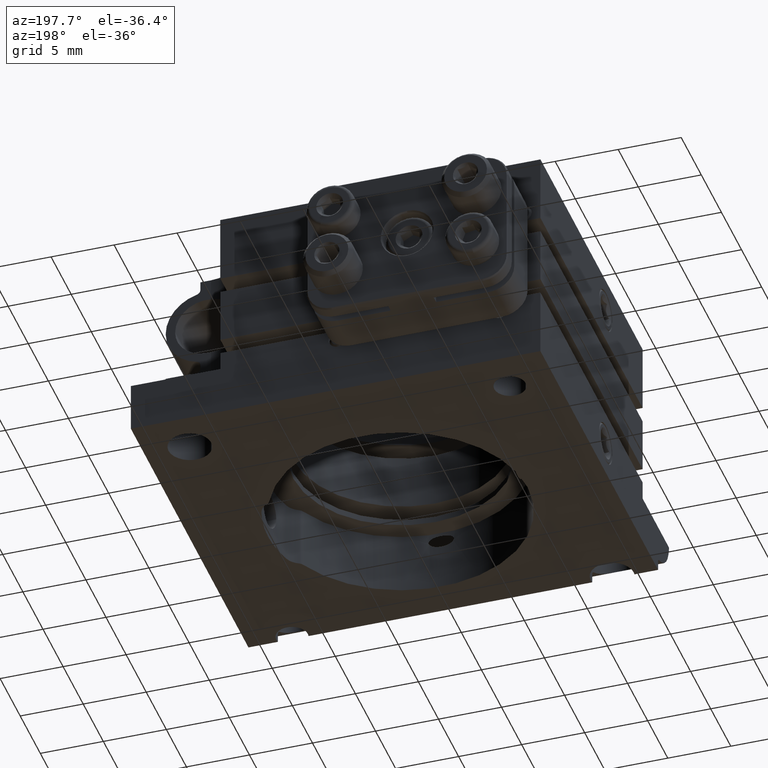
[diagram: clean part render]
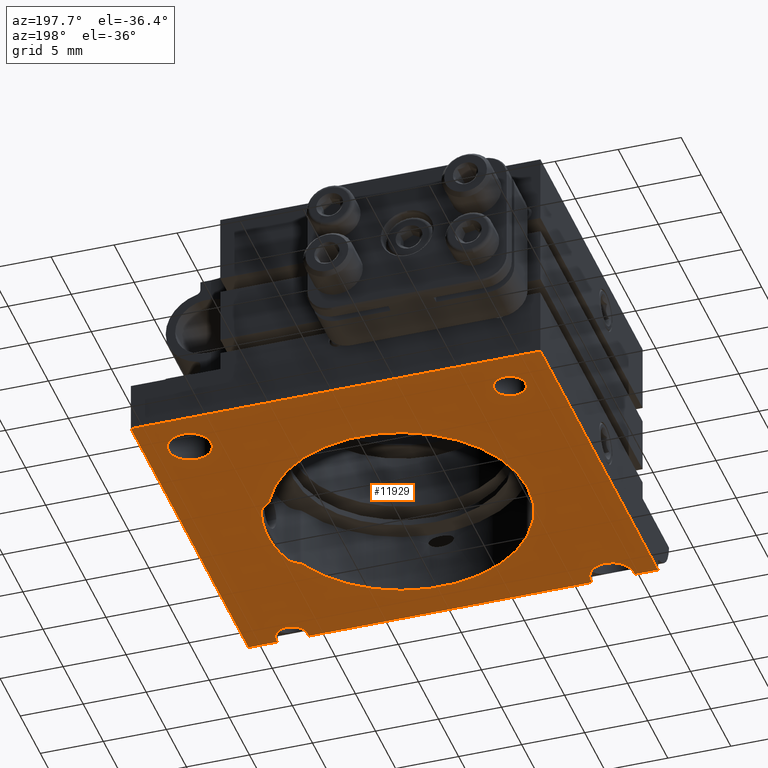
[diagram: same view with one face highlighted and labeled with its STEP entity id]
A machine part, auxiliary view. The second image highlights one B-rep face of the part: STEP entity #11929.
In plain terms, the highlighted planar face has unit normal (-0, 0, 1).
Its self-contained STEP definition (entity closure, byte-faithful):
#16 = VERTEX_POINT ( 'NONE', #8841 ) ;
#22 = ORIENTED_EDGE ( 'NONE', *, *, #2382, .T. ) ;
#42 = EDGE_CURVE ( 'NONE', #8092, #12318, #11308, .T. ) ;
#53 = LINE ( 'NONE', #2204, #6867 ) ;
#80 = LINE ( 'NONE', #4130, #5742 ) ;
#98 = ORIENTED_EDGE ( 'NONE', *, *, #5771, .T. ) ;
#114 = DIRECTION ( 'NONE',  ( -0.000000000000000000, -0.000000000000000000, -1.000000000000000000 ) ) ;
#161 = LINE ( 'NONE', #303, #3087 ) ;
#206 = CARTESIAN_POINT ( 'NONE',  ( -12.70000000000000107, -9.000000000000000000, 13.94999999999999929 ) ) ;
#254 = CARTESIAN_POINT ( 'NONE',  ( 4.426395735005201004, -9.000000000000001776, -9.576508800033952440 ) ) ;
#255 = DIRECTION ( 'NONE',  ( -0.000000000000000000, 1.000000000000000000, -0.000000000000000000 ) ) ;
#303 = CARTESIAN_POINT ( 'NONE',  ( 12.99999999999999645, -9.000000000000000000, 16.24999999999999645 ) ) ;
#393 = VERTEX_POINT ( 'NONE', #3705 ) ;
#440 = EDGE_CURVE ( 'NONE', #5502, #9500, #2695, .T. ) ;
#465 = CARTESIAN_POINT ( 'NONE',  ( -3.092294519069767933, -9.000000000000000000, -10.08663544534702972 ) ) ;
#476 = ORIENTED_EDGE ( 'NONE', *, *, #8776, .T. ) ;
#488 = CARTESIAN_POINT ( 'NONE',  ( 0.000000000000000000, -9.000000000000000000, 0.000000000000000000 ) ) ;
#602 = EDGE_CURVE ( 'NONE', #8211, #13025, #5074, .T. ) ;
#669 = CARTESIAN_POINT ( 'NONE',  ( 4.216613946616329933, -9.000000000000000000, -9.122645823729028436 ) ) ;
#680 = FACE_OUTER_BOUND ( 'NONE', #6296, .T. ) ;
#688 = DIRECTION ( 'NONE',  ( -0.000000000000000000, 1.000000000000000000, -0.000000000000000000 ) ) ;
#912 = CARTESIAN_POINT ( 'NONE',  ( 12.99999999999999645, -9.000000000000000000, -11.48653389004884318 ) ) ;
#914 = CARTESIAN_POINT ( 'NONE',  ( 12.69999999999999751, -9.000000000000000000, -13.95000000000000284 ) ) ;
#1015 = EDGE_CURVE ( 'NONE', #7879, #5377, #10325, .T. ) ;
#1155 = AXIS2_PLACEMENT_3D ( 'NONE', #10908, #11918, #1503 ) ;
#1304 = CIRCLE ( 'NONE', #7320, 1.249999999999999334 ) ;
#1374 = ORIENTED_EDGE ( 'NONE', *, *, #3005, .T. ) ;
#1400 = VERTEX_POINT ( 'NONE', #9829 ) ;
#1475 = ORIENTED_EDGE ( 'NONE', *, *, #8222, .F. ) ;
#1477 = CARTESIAN_POINT ( 'NONE',  ( 12.69999999999999751, -9.000000000000003553, 12.70000000000000284 ) ) ;
#1503 = DIRECTION ( 'NONE',  ( 0.000000000000000000, -0.000000000000000000, 1.000000000000000000 ) ) ;
#1623 = CARTESIAN_POINT ( 'NONE',  ( 0.000000000000000000, -9.000000000000000000, -10.55000000000000071 ) ) ;
#1679 = DIRECTION ( 'NONE',  ( -0.000000000000000000, -1.000000000000000000, -0.000000000000000000 ) ) ;
#1691 = CARTESIAN_POINT ( 'NONE',  ( 12.69999999999999751, -9.000000000000003553, 12.70000000000000284 ) ) ;
#1721 = ORIENTED_EDGE ( 'NONE', *, *, #2858, .T. ) ;
#1728 = EDGE_CURVE ( 'NONE', #10548, #16, #9592, .T. ) ;
#1733 = DIRECTION ( 'NONE',  ( 0.000000000000000000, 0.000000000000000000, 1.000000000000000000 ) ) ;
#1798 = CARTESIAN_POINT ( 'NONE',  ( 12.69999999999999751, -9.000000000000000000, -11.45000000000000284 ) ) ;
#1836 = CIRCLE ( 'NONE', #9345, 10.05000000000000071 ) ;
#1928 = CARTESIAN_POINT ( 'NONE',  ( -12.70000000000000107, -9.000000000000000000, 12.69999999999999929 ) ) ;
#2014 = ORIENTED_EDGE ( 'NONE', *, *, #440, .F. ) ;
#2051 = CARTESIAN_POINT ( 'NONE',  ( 0.000000000000000000, -9.000000000000000000, 0.000000000000000000 ) ) ;
#2156 = AXIS2_PLACEMENT_3D ( 'NONE', #1691, #2513, #2708 ) ;
#2157 = LINE ( 'NONE', #4186, #3223 ) ;
#2204 = CARTESIAN_POINT ( 'NONE',  ( 12.99999999999999645, -9.000000000000000000, 16.24999999999999645 ) ) ;
#2222 = CIRCLE ( 'NONE', #8867, 1.499999999999999556 ) ;
#2272 = CARTESIAN_POINT ( 'NONE',  ( 12.99999999999999645, -9.000000000000003553, 11.02667994693185705 ) ) ;
#2382 = EDGE_CURVE ( 'NONE', #3278, #10019, #3930, .T. ) ;
#2429 = DIRECTION ( 'NONE',  ( 0.000000000000000000, 0.000000000000000000, 1.000000000000000000 ) ) ;
#2444 = AXIS2_PLACEMENT_3D ( 'NONE', #9925, #8710, #10854 ) ;
#2448 = VERTEX_POINT ( 'NONE', #206 ) ;
#2513 = DIRECTION ( 'NONE',  ( -0.000000000000000000, 1.000000000000000000, -0.000000000000000000 ) ) ;
#2572 = CIRCLE ( 'NONE', #2156, 1.699999999999994849 ) ;
#2576 = DIRECTION ( 'NONE',  ( 0.000000000000000000, 0.000000000000000000, 1.000000000000000000 ) ) ;
#2601 = VECTOR ( 'NONE', #7442, 1000.000000000000000 ) ;
#2641 = CARTESIAN_POINT ( 'NONE',  ( -4.426395735005204557, -9.000000000000000000, -9.576508800033952440 ) ) ;
#2695 = CIRCLE ( 'NONE', #5064, 1.249999999999999334 ) ;
#2708 = DIRECTION ( 'NONE',  ( 0.000000000000000000, 0.000000000000000000, 1.000000000000000000 ) ) ;
#2710 = AXIS2_PLACEMENT_3D ( 'NONE', #11545, #255, #8526 ) ;
#2724 = DIRECTION ( 'NONE',  ( 0.000000000000000000, 0.000000000000000000, -1.000000000000000000 ) ) ;
#2858 = EDGE_CURVE ( 'NONE', #10861, #393, #5445, .T. ) ;
#2918 = VERTEX_POINT ( 'NONE', #6817 ) ;
#2938 = AXIS2_PLACEMENT_3D ( 'NONE', #12285, #9121, #3088 ) ;
#3005 = EDGE_CURVE ( 'NONE', #393, #8092, #7556, .T. ) ;
#3043 = DIRECTION ( 'NONE',  ( -0.000000000000000000, -0.000000000000000000, -1.000000000000000000 ) ) ;
#3087 = VECTOR ( 'NONE', #11657, 1000.000000000000000 ) ;
#3088 = DIRECTION ( 'NONE',  ( 0.000000000000000000, 0.000000000000000000, -1.000000000000000000 ) ) ;
#3092 = VERTEX_POINT ( 'NONE', #5280 ) ;
#3121 = ORIENTED_EDGE ( 'NONE', *, *, #8167, .F. ) ;
#3201 = CARTESIAN_POINT ( 'NONE',  ( -12.69999999999999929, -9.000000000000003553, -12.69999999999999929 ) ) ;
#3223 = VECTOR ( 'NONE', #3043, 1000.000000000000000 ) ;
#3278 = VERTEX_POINT ( 'NONE', #4829 ) ;
#3304 = ORIENTED_EDGE ( 'NONE', *, *, #11293, .T. ) ;
#3308 = ORIENTED_EDGE ( 'NONE', *, *, #1015, .F. ) ;
#3371 = CARTESIAN_POINT ( 'NONE',  ( 3.982954749063886801, -9.000000000000001776, -9.345510765437564871 ) ) ;
#3441 = DIRECTION ( 'NONE',  ( -0.000000000000000000, 1.000000000000000000, -0.000000000000000000 ) ) ;
#3617 = ORIENTED_EDGE ( 'NONE', *, *, #8224, .T. ) ;
#3686 = LINE ( 'NONE', #9938, #10027 ) ;
#3705 = CARTESIAN_POINT ( 'NONE',  ( 3.092294519069764824, -9.000000000000000000, -10.08663544534702972 ) ) ;
#3729 = FACE_BOUND ( 'NONE', #11580, .T. ) ;
#3733 = AXIS2_PLACEMENT_3D ( 'NONE', #2051, #8013, #7022 ) ;
#3746 = VERTEX_POINT ( 'NONE', #8405 ) ;
#3930 = CIRCLE ( 'NONE', #10590, 1.699999999999994849 ) ;
#3952 = DIRECTION ( 'NONE',  ( 0.000000000000000000, 0.000000000000000000, -1.000000000000000000 ) ) ;
#3982 = EDGE_CURVE ( 'NONE', #12318, #3746, #2222, .T. ) ;
#4063 = AXIS2_PLACEMENT_3D ( 'NONE', #254, #6308, #11417 ) ;
#4130 = CARTESIAN_POINT ( 'NONE',  ( -16.25000000000000355, -9.000000000000000000, -16.25000000000000355 ) ) ;
#4186 = CARTESIAN_POINT ( 'NONE',  ( 12.99999999999999645, -9.000000000000000000, 16.24999999999999645 ) ) ;
#4274 = DIRECTION ( 'NONE',  ( -0.000000000000000000, 1.000000000000000000, -0.000000000000000000 ) ) ;
#4407 = ORIENTED_EDGE ( 'NONE', *, *, #9340, .T. ) ;
#4438 = VERTEX_POINT ( 'NONE', #6386 ) ;
#4467 = ORIENTED_EDGE ( 'NONE', *, *, #5367, .F. ) ;
#4536 = FACE_BOUND ( 'NONE', #7313, .T. ) ;
#4555 = ORIENTED_EDGE ( 'NONE', *, *, #42, .T. ) ;
#4607 = DIRECTION ( 'NONE',  ( 0.000000000000000000, 0.000000000000000000, 1.000000000000000000 ) ) ;
#4689 = CARTESIAN_POINT ( 'NONE',  ( -2.652631791239943304, -9.000000000000000000, -8.652516661648402163 ) ) ;
#4733 = CARTESIAN_POINT ( 'NONE',  ( -16.25000000000000000, -9.000000000000000000, 16.24999999999999645 ) ) ;
#4829 = CARTESIAN_POINT ( 'NONE',  ( -12.69999999999999929, -9.000000000000003553, -11.00000000000000533 ) ) ;
#4868 = AXIS2_PLACEMENT_3D ( 'NONE', #488, #688, #4607 ) ;
#5064 = AXIS2_PLACEMENT_3D ( 'NONE', #12099, #1679, #11093 ) ;
#5074 = CIRCLE ( 'NONE', #5505, 1.699999999999994849 ) ;
#5171 = AXIS2_PLACEMENT_3D ( 'NONE', #10848, #11731, #2724 ) ;
#5280 = CARTESIAN_POINT ( 'NONE',  ( -4.216613946616332598, -9.000000000000000000, -9.122645823729026660 ) ) ;
#5297 = AXIS2_PLACEMENT_3D ( 'NONE', #9464, #8391, #11612 ) ;
#5367 = EDGE_CURVE ( 'NONE', #11973, #4438, #3686, .T. ) ;
#5377 = VERTEX_POINT ( 'NONE', #1798 ) ;
#5415 = CARTESIAN_POINT ( 'NONE',  ( 12.99999999999999645, -9.000000000000000000, -16.25000000000000355 ) ) ;
#5445 = CIRCLE ( 'NONE', #2444, 1.499999999999999556 ) ;
#5502 = VERTEX_POINT ( 'NONE', #914 ) ;
#5505 = AXIS2_PLACEMENT_3D ( 'NONE', #1477, #8483, #9743 ) ;
#5742 = VECTOR ( 'NONE', #8209, 1000.000000000000000 ) ;
#5771 = EDGE_CURVE ( 'NONE', #3092, #9364, #1836, .T. ) ;
#6169 = ORIENTED_EDGE ( 'NONE', *, *, #9813, .F. ) ;
#6296 = EDGE_LOOP ( 'NONE', ( #9724, #11303, #3617, #4407, #12191, #4467, #7908, #10505, #9933, #2014, #3121, #3308 ) ) ;
#6308 = DIRECTION ( 'NONE',  ( -0.000000000000000000, -1.000000000000000000, -0.000000000000000000 ) ) ;
#6386 = CARTESIAN_POINT ( 'NONE',  ( 12.99999999999999822, -9.000000000000000000, 16.24999999999999645 ) ) ;
#6436 = AXIS2_PLACEMENT_3D ( 'NONE', #2641, #8958, #2576 ) ;
#6489 = DIRECTION ( 'NONE',  ( 0.000000000000000000, 0.000000000000000000, 1.000000000000000000 ) ) ;
#6490 = EDGE_CURVE ( 'NONE', #16, #11973, #80, .T. ) ;
#6559 = CARTESIAN_POINT ( 'NONE',  ( 12.69999999999999751, -9.000000000000003553, 11.00000000000000888 ) ) ;
#6616 = FACE_BOUND ( 'NONE', #11554, .T. ) ;
#6817 = CARTESIAN_POINT ( 'NONE',  ( 12.69999999999999751, -9.000000000000003553, 14.39999999999999858 ) ) ;
#6859 = DIRECTION ( 'NONE',  ( 0.000000000000000000, 0.000000000000000000, 1.000000000000000000 ) ) ;
#6867 = VECTOR ( 'NONE', #114, 1000.000000000000000 ) ;
#7022 = DIRECTION ( 'NONE',  ( 0.000000000000000000, 0.000000000000000000, 1.000000000000000000 ) ) ;
#7040 = CARTESIAN_POINT ( 'NONE',  ( 12.99999999999999645, -9.000000000000000000, -13.91346610995116251 ) ) ;
#7313 = EDGE_LOOP ( 'NONE', ( #98, #3304, #1721, #1374, #4555, #10134, #476 ) ) ;
#7320 = AXIS2_PLACEMENT_3D ( 'NONE', #1928, #13292, #3952 ) ;
#7442 = DIRECTION ( 'NONE',  ( -1.000000000000000000, -0.000000000000000000, -0.000000000000000000 ) ) ;
#7556 = CIRCLE ( 'NONE', #3733, 10.55000000000000071 ) ;
#7614 = PLANE ( 'NONE',  #1155 ) ;
#7692 = CIRCLE ( 'NONE', #6436, 0.5000000000000004441 ) ;
#7864 = DIRECTION ( 'NONE',  ( -0.000000000000000000, 1.000000000000000000, -0.000000000000000000 ) ) ;
#7879 = VERTEX_POINT ( 'NONE', #912 ) ;
#7908 = ORIENTED_EDGE ( 'NONE', *, *, #6490, .F. ) ;
#8013 = DIRECTION ( 'NONE',  ( -0.000000000000000000, 1.000000000000000000, -0.000000000000000000 ) ) ;
#8092 = VERTEX_POINT ( 'NONE', #1623 ) ;
#8118 = ORIENTED_EDGE ( 'NONE', *, *, #9228, .T. ) ;
#8167 = EDGE_CURVE ( 'NONE', #5377, #5502, #10912, .T. ) ;
#8209 = DIRECTION ( 'NONE',  ( 1.067522139062650425E-16, 0.000000000000000000, 1.000000000000000000 ) ) ;
#8211 = VERTEX_POINT ( 'NONE', #2272 ) ;
#8222 = EDGE_CURVE ( 'NONE', #1400, #2448, #11089, .T. ) ;
#8224 = EDGE_CURVE ( 'NONE', #13025, #2918, #12803, .T. ) ;
#8391 = DIRECTION ( 'NONE',  ( -0.000000000000000000, -1.000000000000000000, -0.000000000000000000 ) ) ;
#8405 = CARTESIAN_POINT ( 'NONE',  ( -3.982954749063889466, -9.000000000000000000, -9.345510765437564871 ) ) ;
#8483 = DIRECTION ( 'NONE',  ( -0.000000000000000000, 1.000000000000000000, -0.000000000000000000 ) ) ;
#8518 = CARTESIAN_POINT ( 'NONE',  ( -16.25000000000000355, -9.000000000000000000, -16.25000000000000355 ) ) ;
#8526 = DIRECTION ( 'NONE',  ( 0.000000000000000000, 0.000000000000000000, 1.000000000000000000 ) ) ;
#8549 = CARTESIAN_POINT ( 'NONE',  ( 0.000000000000000000, -9.000000000000000000, 0.000000000000000000 ) ) ;
#8572 = EDGE_CURVE ( 'NONE', #4438, #10907, #2157, .T. ) ;
#8590 = AXIS2_PLACEMENT_3D ( 'NONE', #3201, #4274, #6489 ) ;
#8710 = DIRECTION ( 'NONE',  ( 0.000000000000000000, 1.000000000000000000, 0.000000000000000000 ) ) ;
#8776 = EDGE_CURVE ( 'NONE', #3746, #3092, #7692, .T. ) ;
#8792 = DIRECTION ( 'NONE',  ( 0.000000000000000000, 1.000000000000000000, 0.000000000000000000 ) ) ;
#8805 = CIRCLE ( 'NONE', #4063, 0.5000000000000004441 ) ;
#8841 = CARTESIAN_POINT ( 'NONE',  ( -16.25000000000000355, -9.000000000000000000, -16.25000000000000355 ) ) ;
#8867 = AXIS2_PLACEMENT_3D ( 'NONE', #4689, #8792, #1733 ) ;
#8958 = DIRECTION ( 'NONE',  ( -0.000000000000000000, -1.000000000000000000, -0.000000000000000000 ) ) ;
#9074 = CARTESIAN_POINT ( 'NONE',  ( -12.69999999999999929, -9.000000000000003553, -12.69999999999999929 ) ) ;
#9121 = DIRECTION ( 'NONE',  ( -0.000000000000000000, -1.000000000000000000, -0.000000000000000000 ) ) ;
#9228 = EDGE_CURVE ( 'NONE', #10019, #3278, #12660, .T. ) ;
#9340 = EDGE_CURVE ( 'NONE', #2918, #10907, #2572, .T. ) ;
#9345 = AXIS2_PLACEMENT_3D ( 'NONE', #8549, #3441, #2429 ) ;
#9364 = VERTEX_POINT ( 'NONE', #669 ) ;
#9464 = CARTESIAN_POINT ( 'NONE',  ( -12.70000000000000107, -9.000000000000000000, 12.69999999999999929 ) ) ;
#9500 = VERTEX_POINT ( 'NONE', #7040 ) ;
#9585 = EDGE_CURVE ( 'NONE', #8211, #7879, #53, .T. ) ;
#9592 = LINE ( 'NONE', #8518, #2601 ) ;
#9724 = ORIENTED_EDGE ( 'NONE', *, *, #9585, .F. ) ;
#9743 = DIRECTION ( 'NONE',  ( 0.000000000000000000, 0.000000000000000000, 1.000000000000000000 ) ) ;
#9813 = EDGE_CURVE ( 'NONE', #2448, #1400, #1304, .T. ) ;
#9829 = CARTESIAN_POINT ( 'NONE',  ( -12.70000000000000107, -9.000000000000000000, 11.44999999999999929 ) ) ;
#9925 = CARTESIAN_POINT ( 'NONE',  ( 2.652631791239940640, -9.000000000000001776, -8.652516661648402163 ) ) ;
#9933 = ORIENTED_EDGE ( 'NONE', *, *, #11781, .F. ) ;
#9938 = CARTESIAN_POINT ( 'NONE',  ( -16.25000000000000000, -9.000000000000000000, 16.24999999999999645 ) ) ;
#10019 = VERTEX_POINT ( 'NONE', #10538 ) ;
#10027 = VECTOR ( 'NONE', #12080, 1000.000000000000000 ) ;
#10134 = ORIENTED_EDGE ( 'NONE', *, *, #3982, .T. ) ;
#10325 = CIRCLE ( 'NONE', #5171, 1.249999999999999334 ) ;
#10505 = ORIENTED_EDGE ( 'NONE', *, *, #1728, .F. ) ;
#10538 = CARTESIAN_POINT ( 'NONE',  ( -12.69999999999999929, -9.000000000000003553, -14.39999999999999503 ) ) ;
#10548 = VERTEX_POINT ( 'NONE', #5415 ) ;
#10590 = AXIS2_PLACEMENT_3D ( 'NONE', #9074, #7864, #6859 ) ;
#10848 = CARTESIAN_POINT ( 'NONE',  ( 12.69999999999999751, -9.000000000000000000, -12.70000000000000284 ) ) ;
#10854 = DIRECTION ( 'NONE',  ( 0.000000000000000000, 0.000000000000000000, 1.000000000000000000 ) ) ;
#10861 = VERTEX_POINT ( 'NONE', #3371 ) ;
#10907 = VERTEX_POINT ( 'NONE', #12699 ) ;
#10908 = CARTESIAN_POINT ( 'NONE',  ( 0.000000000000000000, -9.000000000000000000, 0.000000000000000000 ) ) ;
#10912 = CIRCLE ( 'NONE', #2938, 1.249999999999999334 ) ;
#11089 = CIRCLE ( 'NONE', #5297, 1.249999999999999334 ) ;
#11093 = DIRECTION ( 'NONE',  ( 0.000000000000000000, 0.000000000000000000, -1.000000000000000000 ) ) ;
#11293 = EDGE_CURVE ( 'NONE', #9364, #10861, #8805, .T. ) ;
#11303 = ORIENTED_EDGE ( 'NONE', *, *, #602, .T. ) ;
#11308 = CIRCLE ( 'NONE', #4868, 10.55000000000000071 ) ;
#11417 = DIRECTION ( 'NONE',  ( -1.734723475976805517E-15, 0.000000000000000000, 1.000000000000000000 ) ) ;
#11545 = CARTESIAN_POINT ( 'NONE',  ( 12.69999999999999751, -9.000000000000003553, 12.70000000000000284 ) ) ;
#11554 = EDGE_LOOP ( 'NONE', ( #22, #8118 ) ) ;
#11580 = EDGE_LOOP ( 'NONE', ( #1475, #6169 ) ) ;
#11612 = DIRECTION ( 'NONE',  ( 0.000000000000000000, 0.000000000000000000, -1.000000000000000000 ) ) ;
#11657 = DIRECTION ( 'NONE',  ( -0.000000000000000000, -0.000000000000000000, -1.000000000000000000 ) ) ;
#11731 = DIRECTION ( 'NONE',  ( -0.000000000000000000, -1.000000000000000000, -0.000000000000000000 ) ) ;
#11781 = EDGE_CURVE ( 'NONE', #9500, #10548, #161, .T. ) ;
#11918 = DIRECTION ( 'NONE',  ( 0.000000000000000000, 1.000000000000000000, 0.000000000000000000 ) ) ;
#11929 = ADVANCED_FACE ( 'NONE', ( #6616, #4536, #680, #3729 ), #7614, .F. ) ;
#11973 = VERTEX_POINT ( 'NONE', #4733 ) ;
#12080 = DIRECTION ( 'NONE',  ( 1.000000000000000000, 0.000000000000000000, 0.000000000000000000 ) ) ;
#12099 = CARTESIAN_POINT ( 'NONE',  ( 12.69999999999999751, -9.000000000000000000, -12.70000000000000284 ) ) ;
#12191 = ORIENTED_EDGE ( 'NONE', *, *, #8572, .F. ) ;
#12285 = CARTESIAN_POINT ( 'NONE',  ( 12.69999999999999751, -9.000000000000000000, -12.70000000000000284 ) ) ;
#12318 = VERTEX_POINT ( 'NONE', #465 ) ;
#12660 = CIRCLE ( 'NONE', #8590, 1.699999999999994849 ) ;
#12699 = CARTESIAN_POINT ( 'NONE',  ( 12.99999999999999645, -9.000000000000003553, 14.37332005306814864 ) ) ;
#12803 = CIRCLE ( 'NONE', #2710, 1.699999999999994849 ) ;
#13025 = VERTEX_POINT ( 'NONE', #6559 ) ;
#13292 = DIRECTION ( 'NONE',  ( -0.000000000000000000, -1.000000000000000000, -0.000000000000000000 ) ) ;